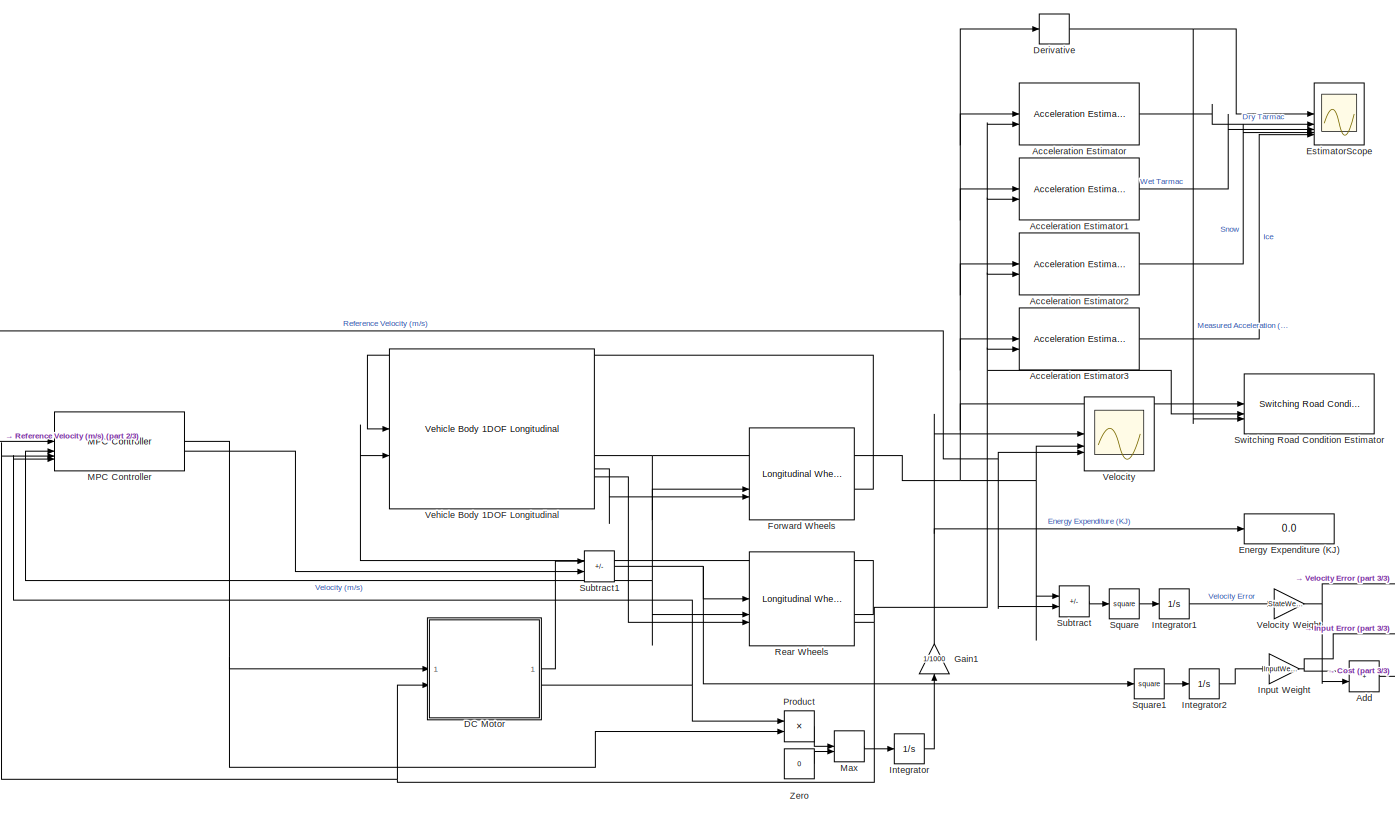
[diagram: root canvas - part 1/3, center side, full height]
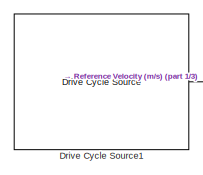
[diagram: root canvas - part 2/3, middle left region]
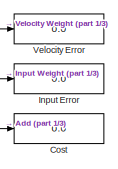
[diagram: root canvas - part 3/3, bottom right region]
MODEL slx_b87cef125f56
KIND model
CONFIG AbsTol = auto
CONFIG EnableMultiTasking = off
CONFIG FixedStep = auto
CONFIG InitFcn = run("MPC\Initialization.m")
CONFIG MaxStep = auto
CONFIG MinStep = auto
CONFIG RelTol = 1e-3
CONFIG SampleTimeConstraint = Unconstrained
CONFIG SolverName = VariableStepAuto
CONFIG StartTime = 0.0
CONFIG StopTime = 1000
WORKSPACE source: mxarray member
WORKSPACE MotorTorqueMax = 500
WORKSPACE WheelRadius = 0.3
BLOCK [Reference] Acceleration Estimator  REF=MultiModelToolbox/Acceleration Estimator
  SourceBlock = MultiModelToolbox/Acceleration Estimator
BLOCK [Reference] Acceleration Estimator1  REF=MultiModelToolbox/Acceleration Estimator
  SourceBlock = MultiModelToolbox/Acceleration Estimator
BLOCK [Reference] Acceleration Estimator2  REF=MultiModelToolbox/Acceleration Estimator
  SourceBlock = MultiModelToolbox/Acceleration Estimator
BLOCK [Reference] Acceleration Estimator3  REF=MultiModelToolbox/Acceleration Estimator
  SourceBlock = MultiModelToolbox/Acceleration Estimator
BLOCK [Sum] Add
  IconShape = rectangular
BLOCK [Display] Cost
  Decimation = 1
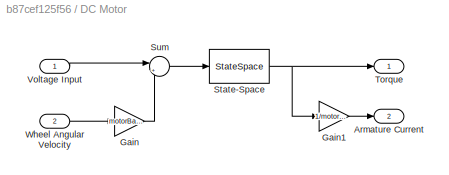
BLOCK [SubSystem] DC Motor
BLOCK [Outport] DC Motor/Armature Current
  Port = 2
BLOCK [Gain] DC Motor/Gain
  Gain = motorBackEMFConstant
BLOCK [Gain] DC Motor/Gain1
  Gain = 1/motorTorqueConstant
BLOCK [StateSpace] DC Motor/State-Space
  A = -motorResistance/motorInductance
  B = 1/motorInductance
  C = motorTorqueConstant
  D = 0
  InitialCondition = 0
BLOCK [Sum] DC Motor/Sum
  Inputs = |+-
BLOCK [Outport] DC Motor/Torque
BLOCK [Inport] DC Motor/Voltage Input
BLOCK [Inport] DC Motor/Wheel Angular Velocity
  Port = 2
BLOCK [Derivative] Derivative
BLOCK [Reference] Drive Cycle Source1  REF=autolibshared/Drive Cycle Source
  AttributesFormatString = %<cycleVar> (%<tfinal>)
  LibrarySourceBlock = vdynlib/Vehicle Scenarios/Drive Cycle and Maneuvers/Drive Cycle Source
  SourceBlock = autolibshared/Drive Cycle Source
  SourceType = Drive Cycle Source
BLOCK [Display] Energy Expenditure (KJ)
  Decimation = 1
BLOCK [Scope] EstimatorScope
  Floating = off
  NumInputPorts = 5
  ScopeSpecificationString = Simulink.scopes.TimeScopeBlockCfg('CurrentConfiguration', extmgr.ConfigurationSet(extmgr.Configuration('Core','General UI',true,'FigureColor',[1 1 1]),extmgr.Configuration('Core','Source UI',true),extmgr.Configuration('Sources','WiredSimulink',true,'DataLoggingVariableName','ScopeData1'),extmgr.Configuration('Visuals','Time Domain',true,'SerializedDisplays',{struct('MinYLimReal','-2.20043','MaxYLi...<+1775ch>
BLOCK [Reference] Forward Wheels  REF=autolibshared/Longitudinal Wheel
  LibrarySourceBlock = vehdynlibtire/Longitudinal Wheel - Disc Brake
  SourceBlock = autolibshared/Longitudinal Wheel
  SourceType = Longitudinal Wheel
BLOCK [Gain] Gain1
  Gain = 1/1000
  NameLocation = right
BLOCK [Display] Input Error
  Decimation = 1
BLOCK [Gain] Input Weight
  Gain = InputWeightMatrix
BLOCK [Integrator] Integrator
BLOCK [Integrator] Integrator1
BLOCK [Integrator] Integrator2
BLOCK [Reference] MPC Controller  REF=MultiModelToolbox/MPC Controller
  SourceBlock = MultiModelToolbox/MPC Controller
BLOCK [MinMax] Max
  Function = max
  Inputs = 2
BLOCK [Product] Product
BLOCK [Reference] Rear Wheels  REF=autolibshared/Longitudinal Wheel
  LibrarySourceBlock = vehdynlibtire/Longitudinal Wheel - Disc Brake
  SourceBlock = autolibshared/Longitudinal Wheel
  SourceType = Longitudinal Wheel
BLOCK [Math] Square
  Operator = square
BLOCK [Math] Square1
  Operator = square
BLOCK [Sum] Subtract
  IconShape = rectangular
  Inputs = +-
BLOCK [Sum] Subtract1
  IconShape = rectangular
  Inputs = +-
BLOCK [Reference] Switching Road Condition Estimator  REF=MultiModelToolbox/Switching Road Condition Estimator
  SourceBlock = MultiModelToolbox/Switching Road Condition Estimator
BLOCK [Reference] Vehicle Body 1DOF Longitudinal  REF=autolibshared/Vehicle Body 1DOF Longitudinal
  LibrarySourceBlock = vehdynlibeom/Vehicle Body 1DOF Longitudinal
  SourceBlock = autolibshared/Vehicle Body 1DOF Longitudinal
  SourceType = Vehicle Body 1DOF Longitudinal
BLOCK [Scope] Velocity
  Floating = off
  NumInputPorts = 3
  ScopeSpecificationString = Simulink.scopes.TimeScopeBlockCfg('CurrentConfiguration', extmgr.ConfigurationSet(extmgr.Configuration('Core','General UI',true,'FigureColor',[1 1 1]),extmgr.Configuration('Core','Source UI',true),extmgr.Configuration('Sources','WiredSimulink',true),extmgr.Configuration('Visuals','Time Domain',true,'SerializedDisplays',{struct('MinYLimReal','-6.06841','MaxYLimReal','54.61565','YLabelReal','','MinY...<+2484ch>
BLOCK [Display] Velocity Error
  Decimation = 1
BLOCK [Gain] Velocity Weight
  Gain = StateWeightMatrix(1)
BLOCK [Constant] Zero
  OutDataTypeStr = Inherit: Inherit via back propagation
  Value = 0
LINE Acceleration Estimator1:1 -> EstimatorScope:3
LINE Acceleration Estimator2:1 -> EstimatorScope:4
LINE Acceleration Estimator3:1 -> EstimatorScope:5
LINE Acceleration Estimator:1 -> EstimatorScope:2
LINE Add:1 -> Cost:1
LINE DC Motor/Gain1:1 -> DC Motor/Armature Current:1
LINE DC Motor/Gain:1 -> DC Motor/Sum:2
NET DC Motor/State-Space:1 -> DC Motor/Gain1:1, DC Motor/Torque:1
LINE DC Motor/Sum:1 -> DC Motor/State-Space:1
LINE DC Motor/Voltage Input:1 -> DC Motor/Sum:1
LINE DC Motor/Wheel Angular Velocity:1 -> DC Motor/Gain:1
LINE DC Motor:1 -> Subtract1:1
NET DC Motor:2 -> MPC Controller:4, Product:1
NET Derivative:1 -> EstimatorScope:1, Switching Road Condition Estimator:3
NET Drive Cycle Source1:1 -> MPC Controller:1, Subtract:2, Velocity:3
LINE Forward Wheels:2 -> Vehicle Body 1DOF Longitudinal:1
NET Gain1:1 -> Energy Expenditure (KJ):1, Velocity:1
NET Input Weight:1 -> Add:1, Input Error:1
LINE Integrator1:1 -> Velocity Weight:1
LINE Integrator2:1 -> Input Weight:1
LINE Integrator:1 -> Gain1:1
NET MPC Controller:1 -> DC Motor:1, Product:2
LINE MPC Controller:2 -> Subtract1:2
LINE Max:1 -> Integrator:1
LINE Product:1 -> Max:1
LINE Rear Wheels:2 -> Vehicle Body 1DOF Longitudinal:2
NET Rear Wheels:3 -> Acceleration Estimator1:2, Acceleration Estimator2:2, Acceleration Estimator3:2, Acceleration Estimator:2, DC Motor:2, MPC Controller:3, Switching Road Condition Estimator:2
LINE Square1:1 -> Integrator2:1
LINE Square:1 -> Integrator1:1
NET Subtract1:1 -> Rear Wheels:1, Square1:1
LINE Subtract:1 -> Square:1
NET Vehicle Body 1DOF Longitudinal:2 -> Acceleration Estimator1:1, Acceleration Estimator2:1, Acceleration Estimator3:1, Acceleration Estimator:1, Derivative:1, Forward Wheels:2, MPC Controller:2, Rear Wheels:2, Subtract:1, Switching Road Condition Estimator:1, Velocity:2
LINE Vehicle Body 1DOF Longitudinal:3 -> Forward Wheels:3
LINE Vehicle Body 1DOF Longitudinal:4 -> Rear Wheels:3
NET Velocity Weight:1 -> Add:2, Velocity Error:1
LINE Zero:1 -> Max:2
note: NET lines group one-source signal fan-out (src -> all destinations, sorted); 1:1 wires keep LINE
